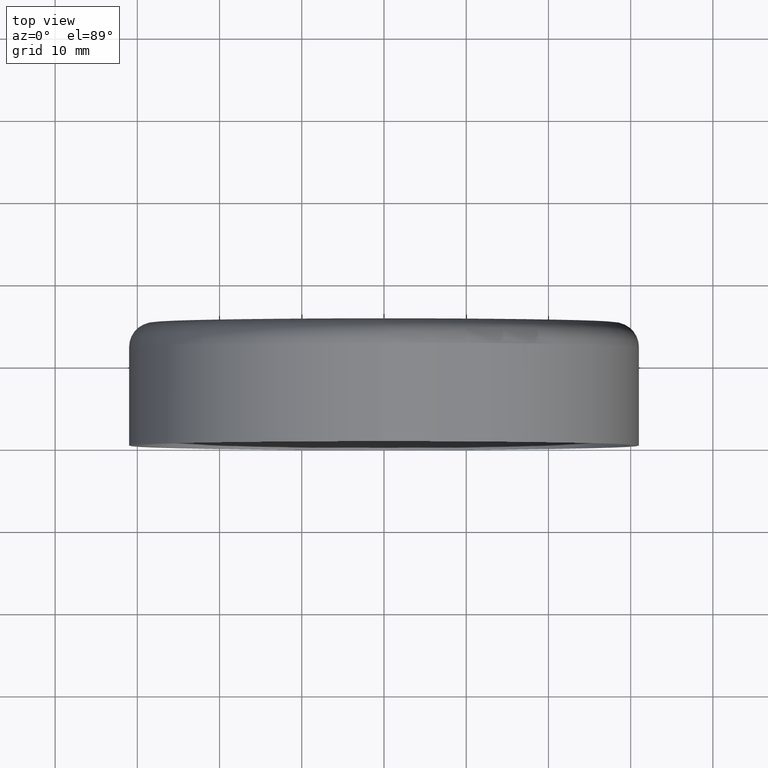
[diagram: clean part render]
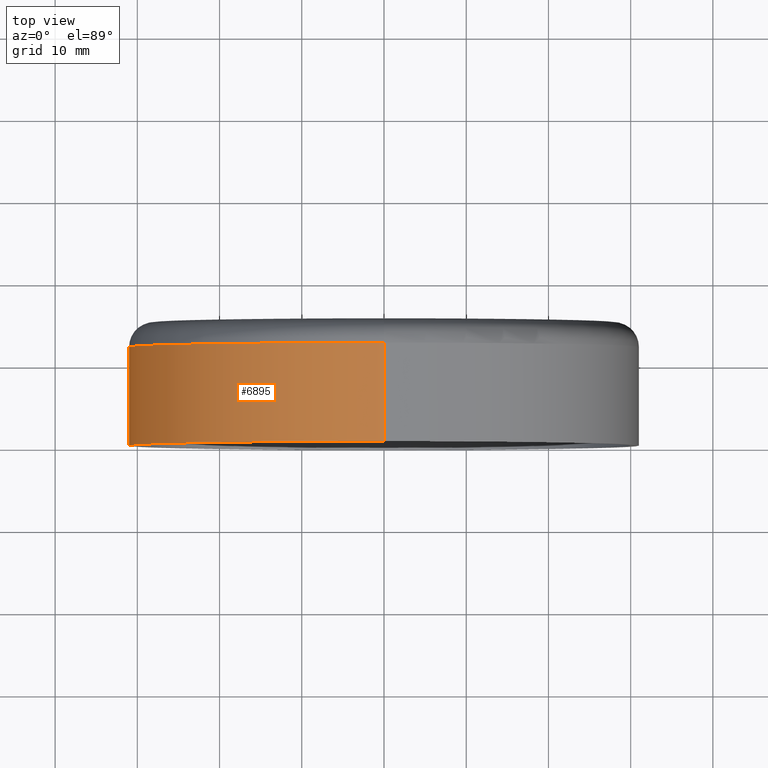
[diagram: same view with one face highlighted and labeled with its STEP entity id]
A machine part, top view. The second image highlights one B-rep face of the part: STEP entity #6895.
In plain terms, the highlighted cylindrical surface (partial cylindrical patch) has radius 31 mm, axis along (-0, -1, -0).
Its self-contained STEP definition (entity closure, byte-faithful):
#193 = CARTESIAN_POINT ( 'NONE',  ( 0.000000000000000000, 12.00000000000000000, -31.00000000000000000 ) ) ;
#694 = ORIENTED_EDGE ( 'NONE', *, *, #9889, .F. ) ;
#787 = CARTESIAN_POINT ( 'NONE',  ( 0.000000000000000000, 12.00000000000000000, 0.000000000000000000 ) ) ;
#1726 = ORIENTED_EDGE ( 'NONE', *, *, #4433, .T. ) ;
#2146 = LINE ( 'NONE', #13804, #5702 ) ;
#2226 = AXIS2_PLACEMENT_3D ( 'NONE', #16282, #8710, #10087 ) ;
#2619 = CARTESIAN_POINT ( 'NONE',  ( 0.000000000000000000, 0.000000000000000000, -31.00000000000000000 ) ) ;
#3791 = VECTOR ( 'NONE', #6266, 1000.000000000000000 ) ;
#3965 = DIRECTION ( 'NONE',  ( 0.000000000000000000, 0.000000000000000000, -1.000000000000000000 ) ) ;
#4433 = EDGE_CURVE ( 'NONE', #16113, #10686, #6942, .T. ) ;
#4578 = EDGE_LOOP ( 'NONE', ( #694, #13459, #1726, #13598 ) ) ;
#5331 = CYLINDRICAL_SURFACE ( 'NONE', #12363, 31.00000000000000000 ) ;
#5702 = VECTOR ( 'NONE', #16212, 1000.000000000000000 ) ;
#6266 = DIRECTION ( 'NONE',  ( -0.000000000000000000, -1.000000000000000000, -0.000000000000000000 ) ) ;
#6813 = EDGE_CURVE ( 'NONE', #10421, #10686, #8680, .T. ) ;
#6895 = ADVANCED_FACE ( 'NONE', ( #9277 ), #5331, .T. ) ;
#6942 = LINE ( 'NONE', #2619, #3791 ) ;
#7215 = AXIS2_PLACEMENT_3D ( 'NONE', #787, #9759, #11037 ) ;
#8680 = CIRCLE ( 'NONE', #2226, 31.00000000000000000 ) ;
#8710 = DIRECTION ( 'NONE',  ( -0.000000000000000000, -1.000000000000000000, -0.000000000000000000 ) ) ;
#8919 = DIRECTION ( 'NONE',  ( -0.000000000000000000, -1.000000000000000000, -0.000000000000000000 ) ) ;
#8976 = CIRCLE ( 'NONE', #7215, 31.00000000000000000 ) ;
#9277 = FACE_OUTER_BOUND ( 'NONE', #4578, .T. ) ;
#9759 = DIRECTION ( 'NONE',  ( -0.000000000000000000, -1.000000000000000000, -0.000000000000000000 ) ) ;
#9889 = EDGE_CURVE ( 'NONE', #10210, #10421, #2146, .T. ) ;
#10087 = DIRECTION ( 'NONE',  ( 0.000000000000000000, 0.000000000000000000, -1.000000000000000000 ) ) ;
#10210 = VERTEX_POINT ( 'NONE', #12642 ) ;
#10421 = VERTEX_POINT ( 'NONE', #12845 ) ;
#10686 = VERTEX_POINT ( 'NONE', #15849 ) ;
#11037 = DIRECTION ( 'NONE',  ( 0.000000000000000000, 0.000000000000000000, -1.000000000000000000 ) ) ;
#11623 = CARTESIAN_POINT ( 'NONE',  ( 0.000000000000000000, 0.000000000000000000, 0.000000000000000000 ) ) ;
#12363 = AXIS2_PLACEMENT_3D ( 'NONE', #11623, #8919, #3965 ) ;
#12642 = CARTESIAN_POINT ( 'NONE',  ( 3.796405077356795115E-15, 12.00000000000000000, 31.00000000000000000 ) ) ;
#12845 = CARTESIAN_POINT ( 'NONE',  ( 3.796405077356795115E-15, 0.000000000000000000, 31.00000000000000000 ) ) ;
#13111 = EDGE_CURVE ( 'NONE', #10210, #16113, #8976, .T. ) ;
#13459 = ORIENTED_EDGE ( 'NONE', *, *, #13111, .T. ) ;
#13598 = ORIENTED_EDGE ( 'NONE', *, *, #6813, .F. ) ;
#13804 = CARTESIAN_POINT ( 'NONE',  ( 3.796405077356795115E-15, 0.000000000000000000, 31.00000000000000000 ) ) ;
#15849 = CARTESIAN_POINT ( 'NONE',  ( 0.000000000000000000, 0.000000000000000000, -31.00000000000000000 ) ) ;
#16113 = VERTEX_POINT ( 'NONE', #193 ) ;
#16212 = DIRECTION ( 'NONE',  ( -0.000000000000000000, -1.000000000000000000, -0.000000000000000000 ) ) ;
#16282 = CARTESIAN_POINT ( 'NONE',  ( 0.000000000000000000, 0.000000000000000000, 0.000000000000000000 ) ) ;